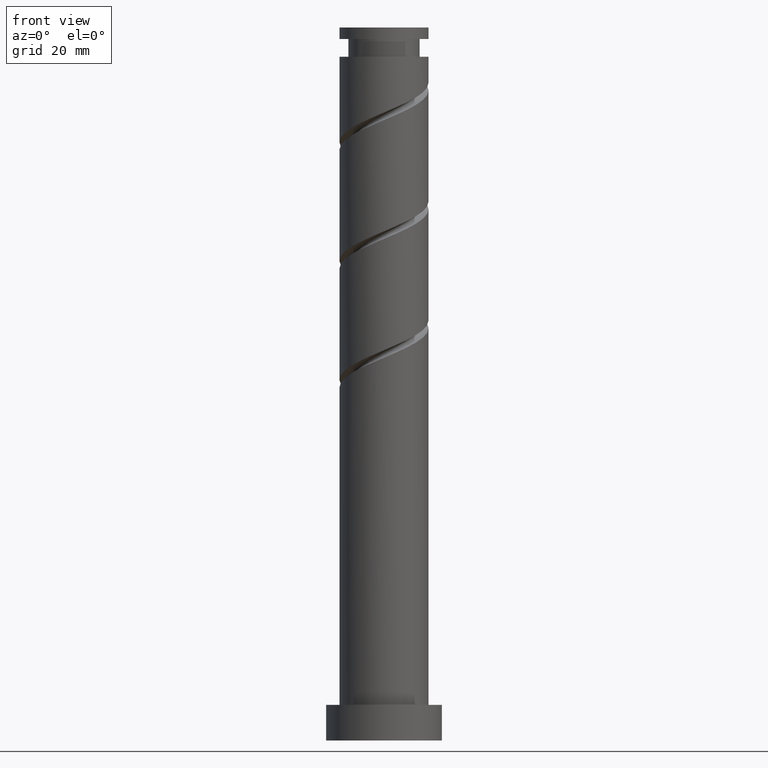
[diagram: clean part render]
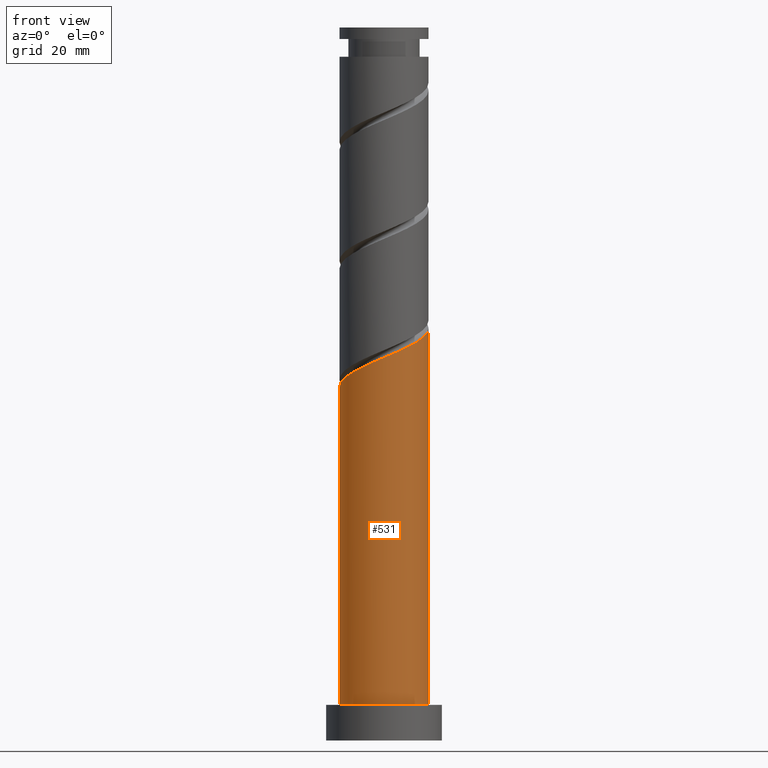
[diagram: same view with one face highlighted and labeled with its STEP entity id]
A machine part, front view. The second image highlights one B-rep face of the part: STEP entity #531.
In plain terms, the highlighted cylindrical surface (partial cylindrical patch) has radius 10 mm, axis along (-0, -0, -1).
Its self-contained STEP definition (entity closure, byte-faithful):
#30 = DIRECTION ( 'NONE',  ( -0.000000000000000000, -0.000000000000000000, -1.000000000000000000 ) ) ;
#53 = EDGE_CURVE ( 'NONE', #1335, #545, #1584, .T. ) ;
#78 = EDGE_CURVE ( 'NONE', #1047, #828, #331, .T. ) ;
#89 = CARTESIAN_POINT ( 'NONE',  ( -9.417047178041597633, -3.364405214378778375, 80.69973631760687738 ) ) ;
#145 = DIRECTION ( 'NONE',  ( -0.000000000000000000, -0.000000000000000000, -1.000000000000000000 ) ) ;
#208 = CARTESIAN_POINT ( 'NONE',  ( -0.8516121475690136000, -9.963671850784386663, 85.54822116609173577 ) ) ;
#226 = CARTESIAN_POINT ( 'NONE',  ( 5.941689777682051421, -8.170896056626803627, 88.57852419639476693 ) ) ;
#243 = EDGE_CURVE ( 'NONE', #1047, #1335, #881, .T. ) ;
#291 = DIRECTION ( 'NONE',  ( -1.000000000000000000, 0.000000000000000000, 0.000000000000000000 ) ) ;
#324 = CARTESIAN_POINT ( 'NONE',  ( 10.00000000000001776, -1.145289273851229250, 92.09159461260738055 ) ) ;
#331 =( BOUNDED_CURVE ( )  B_SPLINE_CURVE ( 2, ( #990, #351, #877, #1620, #89, #618, #1017, #1365, #725, #1376, #1236, #1139, #208, #626, #1388, #1260, #1109, #226, #1606, #454, #734, #754, #980, #324, #856 ),
 .UNSPECIFIED., .F., .T. ) 
 B_SPLINE_CURVE_WITH_KNOTS ( ( 3, 2, 2, 2, 2, 2, 2, 2, 2, 2, 2, 2, 3 ),
 ( 0.05452521624175135639, 0.05681818181818176772, 0.06818181818181823228, 0.07954545454545458583, 0.09090909090909093937, 0.1022727272727272929, 0.1136363636363636465, 0.1250000000000000000, 0.1363636363636363535, 0.1477272727272727071, 0.1590909090909090606, 0.1704545454545454142, 0.1795252162417513009 ),
 .UNSPECIFIED. ) 
 CURVE ( )  GEOMETRIC_REPRESENTATION_ITEM ( )  RATIONAL_B_SPLINE_CURVE ( ( 0.9061101570135572381, 0.9072237824201394574, 0.9090909090909168322, 0.8998376744372191816, 0.9090909090909168322, 0.8998376744372191816, 0.9090909090909168322, 0.8998376744372191816, 0.9090909090909168322, 0.8998376744372191816, 0.9090909090909168322, 0.8998376744372191816, 0.9090909090909168322, 0.8998376744372191816, 0.9090909090909168322, 0.8998376744372191816, 0.9090909090909168322, 0.8998376744372191816, 0.9090909090909168322, 0.8998376744372191816, 0.9090909090909168322, 0.8998376744372191816, 0.9090909090909168322, 0.9017048011079966674, 0.9061101570135571270 ) ) 
 REPRESENTATION_ITEM ( '' )  );
#351 = CARTESIAN_POINT ( 'NONE',  ( -10.00000000000001599, -0.2877552652382332488, 79.36631923696360502 ) ) ;
#354 = ORIENTED_EDGE ( 'NONE', *, *, #78, .F. ) ;
#410 = CARTESIAN_POINT ( 'NONE',  ( 10.00000000000000178, 1.224646799147353454E-15, 160.0000000000000000 ) ) ;
#418 = CARTESIAN_POINT ( 'NONE',  ( 0.000000000000000000, 0.000000000000000000, 160.0000000000000000 ) ) ;
#426 = VECTOR ( 'NONE', #1634, 1000.000000000000000 ) ;
#454 = CARTESIAN_POINT ( 'NONE',  ( 8.003017030802038079, -6.165949901442875358, 89.79064540851594245 ) ) ;
#465 = DIRECTION ( 'NONE',  ( 0.000000000000000000, 0.000000000000000000, 1.000000000000000000 ) ) ;
#493 = CARTESIAN_POINT ( 'NONE',  ( 0.000000000000000000, 0.000000000000000000, 8.000000000000000000 ) ) ;
#531 = ADVANCED_FACE ( 'NONE', ( #1323 ), #1308, .T. ) ;
#545 = VERTEX_POINT ( 'NONE', #616 ) ;
#616 = CARTESIAN_POINT ( 'NONE',  ( 10.00000000000000178, 1.224646799147353454E-15, 8.000000000000000000 ) ) ;
#618 = CARTESIAN_POINT ( 'NONE',  ( -8.933318736010427585, -4.718372192107779917, 81.30579692366745803 ) ) ;
#626 = CARTESIAN_POINT ( 'NONE',  ( 0.5809475930625038753, -10.08611519250726118, 86.15428177215231642 ) ) ;
#725 = CARTESIAN_POINT ( 'NONE',  ( -6.103189422011780607, -7.921557856826131783, 83.12397874184928526 ) ) ;
#734 = CARTESIAN_POINT ( 'NONE',  ( 8.709502235331704867, -4.913712528501477550, 90.39670601457653731 ) ) ;
#754 = CARTESIAN_POINT ( 'NONE',  ( 9.415987439861378760, -3.661475155560074857, 91.00276662063718902 ) ) ;
#771 = ORIENTED_EDGE ( 'NONE', *, *, #1162, .F. ) ;
#804 = CARTESIAN_POINT ( 'NONE',  ( -10.00000000000001776, -8.525387800992986431E-15, 79.24422123224540826 ) ) ;
#828 = VERTEX_POINT ( 'NONE', #1178 ) ;
#856 = CARTESIAN_POINT ( 'NONE',  ( 10.00000000000001776, 8.196337745516063134E-15, 92.57755456557869422 ) ) ;
#877 = CARTESIAN_POINT ( 'NONE',  ( -9.983453082824716773, -0.5750343842223855084, 79.48761510548565923 ) ) ;
#881 = LINE ( 'NONE', #1380, #426 ) ;
#980 = CARTESIAN_POINT ( 'NONE',  ( 9.741058992719015208, -2.260922311882543667, 91.60882722669775546 ) ) ;
#990 = CARTESIAN_POINT ( 'NONE',  ( -10.00000000000001776, -8.525387800992986431E-15, 79.24422123224540826 ) ) ;
#1017 = CARTESIAN_POINT ( 'NONE',  ( -8.087728116229571995, -5.881211942954442939, 81.91185752972806711 ) ) ;
#1047 = VERTEX_POINT ( 'NONE', #804 ) ;
#1109 = CARTESIAN_POINT ( 'NONE',  ( 4.670345966523016479, -8.842390432059792360, 87.97246359033415786 ) ) ;
#1137 = AXIS2_PLACEMENT_3D ( 'NONE', #493, #465, #1355 ) ;
#1139 = CARTESIAN_POINT ( 'NONE',  ( -2.284171888200531964, -9.841228509061519247, 84.94216056003111248 ) ) ;
#1162 = EDGE_CURVE ( 'NONE', #828, #545, #1437, .T. ) ;
#1178 = CARTESIAN_POINT ( 'NONE',  ( 10.00000000000001776, 8.196337745516063134E-15, 92.57755456557869422 ) ) ;
#1235 = CARTESIAN_POINT ( 'NONE',  ( -10.00000000000000178, 0.000000000000000000, 8.000000000000000000 ) ) ;
#1236 = CARTESIAN_POINT ( 'NONE',  ( -3.624206617887689053, -9.320146264456338869, 84.33609995397047498 ) ) ;
#1260 = CARTESIAN_POINT ( 'NONE',  ( 3.399002155363985089, -9.513884807492777540, 87.36640298427356299 ) ) ;
#1308 = CYLINDRICAL_SURFACE ( 'NONE', #1505, 10.00000000000000178 ) ;
#1323 = FACE_OUTER_BOUND ( 'NONE', #1650, .T. ) ;
#1335 = VERTEX_POINT ( 'NONE', #1235 ) ;
#1355 = DIRECTION ( 'NONE',  ( 1.000000000000000000, 0.000000000000000000, 0.000000000000000000 ) ) ;
#1365 = CARTESIAN_POINT ( 'NONE',  ( -7.242137496448719958, -7.044051693801111291, 82.51791813578869039 ) ) ;
#1376 = CARTESIAN_POINT ( 'NONE',  ( -4.964241347574846586, -8.799064019851154939, 83.73003934790989433 ) ) ;
#1380 = CARTESIAN_POINT ( 'NONE',  ( -10.00000000000000178, 0.000000000000000000, 160.0000000000000000 ) ) ;
#1388 = CARTESIAN_POINT ( 'NONE',  ( 1.989974874213243705, -9.800000000000014921, 86.76034237821292550 ) ) ;
#1437 = LINE ( 'NONE', #410, #1638 ) ;
#1505 = AXIS2_PLACEMENT_3D ( 'NONE', #418, #145, #291 ) ;
#1584 = CIRCLE ( 'NONE', #1137, 10.00000000000000178 ) ;
#1606 = CARTESIAN_POINT ( 'NONE',  ( 6.972353404242041641, -7.168422979034840381, 89.18458480245533337 ) ) ;
#1620 = CARTESIAN_POINT ( 'NONE',  ( -9.900775620072769456, -2.010438236649779942, 80.09367571154629672 ) ) ;
#1621 = ORIENTED_EDGE ( 'NONE', *, *, #243, .T. ) ;
#1622 = ORIENTED_EDGE ( 'NONE', *, *, #53, .T. ) ;
#1634 = DIRECTION ( 'NONE',  ( -0.000000000000000000, -0.000000000000000000, -1.000000000000000000 ) ) ;
#1638 = VECTOR ( 'NONE', #30, 1000.000000000000000 ) ;
#1650 = EDGE_LOOP ( 'NONE', ( #771, #354, #1621, #1622 ) ) ;